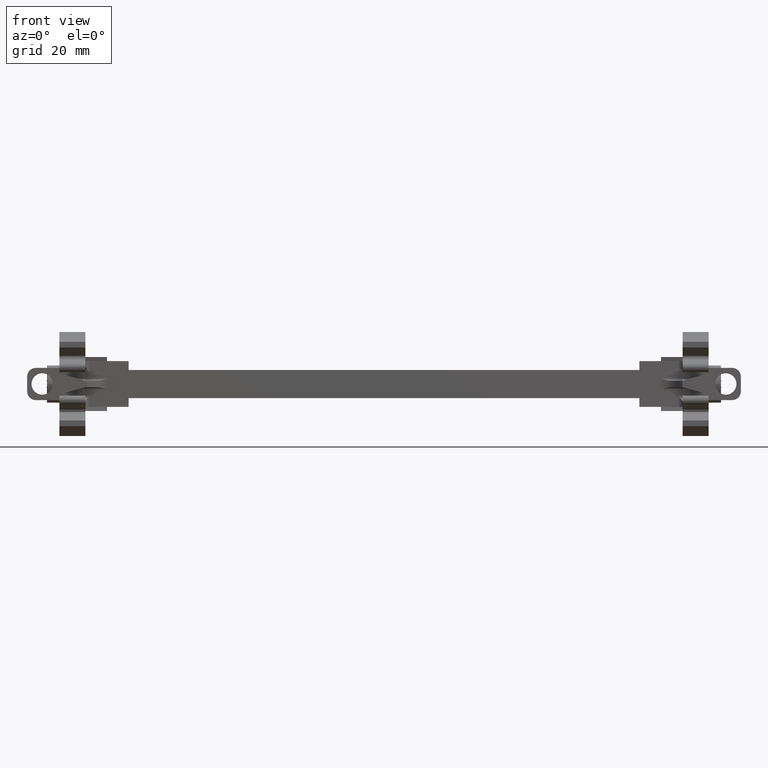
[diagram: clean part render]
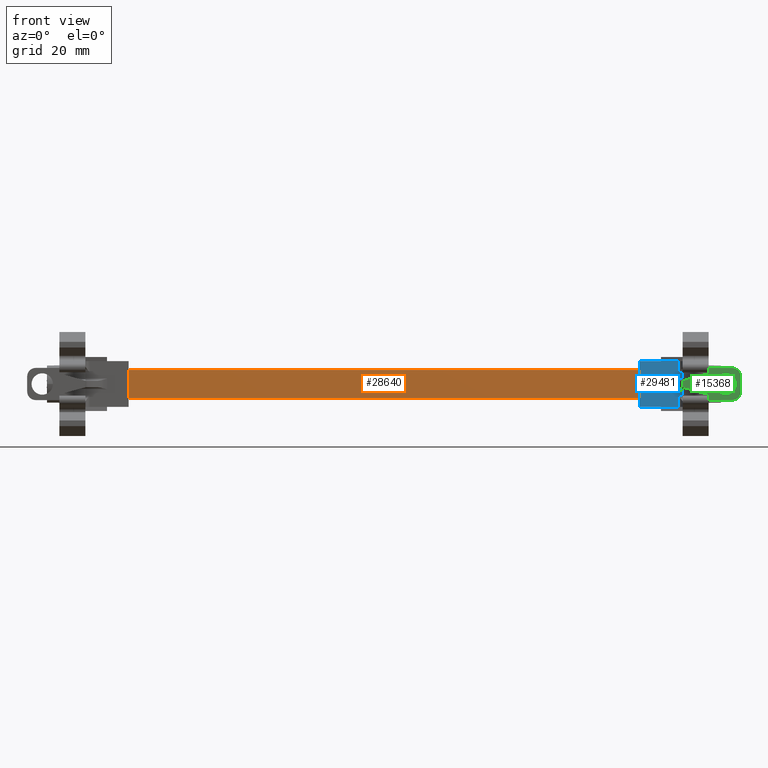
[diagram: same view with three faces highlighted in distinct colors, each labeled with its STEP entity id]
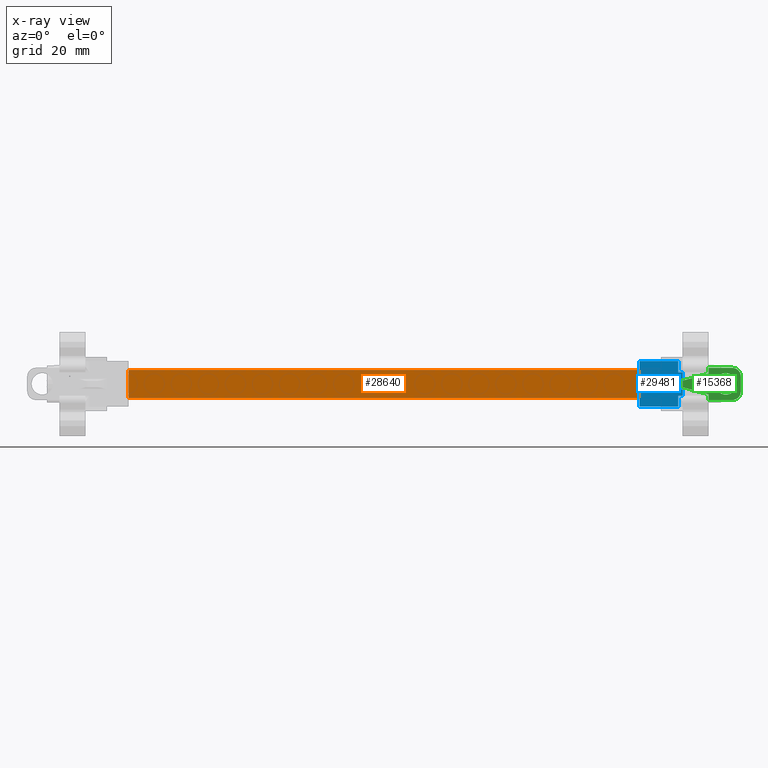
[diagram: x-ray of the same camera — body ghosted, the three highlighted faces saturated]
A machine part, front view with three faces highlighted in distinct colors.
The next image is the same camera in x-ray (body ghosted, the three faces saturated) — at least one of them is partly hidden behind the body in this view.
Their STEP definitions:

[orange] entity #28640 — the highlighted planar face has unit normal (-0, 1, 0).
#2460 = PLANE ( 'NONE',  #9435 ) ;
#2461 = CARTESIAN_POINT ( 'NONE',  ( -153.6716458143864100, -99.50918132484949300, 212.7213441700645000 ) ) ;
#2462 = DIRECTION ( 'NONE',  ( 0.0000000000000000000, -1.301736496372995800E-013, 1.000000000000000000 ) ) ;
#2463 = FACE_OUTER_BOUND ( 'NONE', #10185, .T. ) ;
#2490 = DIRECTION ( 'NONE',  ( -1.102107995711174800E-014, 1.000000000000000000, 1.301736496372995800E-013 ) ) ;
#5126 = VECTOR ( 'NONE', #19650, 1000.000000000000000 ) ;
#5166 = VECTOR ( 'NONE', #19595, 1000.000000000000000 ) ;
#5203 = VECTOR ( 'NONE', #21890, 1000.000000000000000 ) ;
#7173 = VERTEX_POINT ( 'NONE', #21377 ) ;
#7183 = VERTEX_POINT ( 'NONE', #21379 ) ;
#7185 = VERTEX_POINT ( 'NONE', #21391 ) ;
#7191 = VERTEX_POINT ( 'NONE', #21392 ) ;
#9435 = AXIS2_PLACEMENT_3D ( 'NONE', #2461, #2490, #2462 ) ;
#9698 = ORIENTED_EDGE ( 'NONE', *, *, #17160, .F. ) ;
#9703 = ORIENTED_EDGE ( 'NONE', *, *, #17189, .F. ) ;
#9717 = ORIENTED_EDGE ( 'NONE', *, *, #18164, .F. ) ;
#9736 = ORIENTED_EDGE ( 'NONE', *, *, #17188, .F. ) ;
#10185 = EDGE_LOOP ( 'NONE', ( #9698, #9703, #9717, #9736 ) ) ;
#17160 = EDGE_CURVE ( 'NONE', #7191, #7173, #21836, .T. ) ;
#17188 = EDGE_CURVE ( 'NONE', #7173, #7185, #19618, .T. ) ;
#17189 = EDGE_CURVE ( 'NONE', #7183, #7191, #19639, .T. ) ;
#18164 = EDGE_CURVE ( 'NONE', #7185, #7183, #20594, .T. ) ;
#19581 = CARTESIAN_POINT ( 'NONE',  ( -69.94164581438649000, -99.50918132484858300, 212.7213441700645000 ) ) ;
#19595 = DIRECTION ( 'NONE',  ( -0.0000000000000000000, 1.301736496372995800E-013, -1.000000000000000000 ) ) ;
#19618 = LINE ( 'NONE', #19638, #5126 ) ;
#19638 = CARTESIAN_POINT ( 'NONE',  ( -187.9416458143863100, -99.50918132484987700, 212.7213441700645000 ) ) ;
#19639 = LINE ( 'NONE', #19581, #5166 ) ;
#19650 = DIRECTION ( 'NONE',  ( 0.0000000000000000000, -1.301736496372995800E-013, 1.000000000000000000 ) ) ;
#20585 = CARTESIAN_POINT ( 'NONE',  ( -153.6716458143864900, -99.50918132485071500, 219.2213441700648400 ) ) ;
#20588 = DIRECTION ( 'NONE',  ( 1.000000000000000000, -3.068278559856131500E-028, 2.356061070560432900E-015 ) ) ;
#20594 = LINE ( 'NONE', #20585, #32402 ) ;
#21377 = CARTESIAN_POINT ( 'NONE',  ( -187.9416458143863100, -99.50918132484987700, 212.7213441700649000 ) ) ;
#21379 = CARTESIAN_POINT ( 'NONE',  ( -69.94164581438649000, -99.50918132485006100, 219.2213441700650400 ) ) ;
#21391 = CARTESIAN_POINT ( 'NONE',  ( -187.9416458143863300, -99.50918132485071500, 219.2213441700646700 ) ) ;
#21392 = CARTESIAN_POINT ( 'NONE',  ( -69.94164581438647600, -99.50918132484858300, 212.7213441700650400 ) ) ;
#21836 = LINE ( 'NONE', #21872, #5203 ) ;
#21872 = CARTESIAN_POINT ( 'NONE',  ( -153.6716458143864100, -99.50918132484949300, 212.7213441700650400 ) ) ;
#21890 = DIRECTION ( 'NONE',  ( -1.000000000000000000, -1.102107995711174800E-014, -1.434654200961729300E-027 ) ) ;
#28640 = ADVANCED_FACE ( 'NONE', ( #2463 ), #2460, .F. ) ;
#32402 = VECTOR ( 'NONE', #20588, 1000.000000000000000 ) ;

[blue] entity #29481 — the highlighted planar face has unit normal (0, -1, -0).
#54 = VECTOR ( 'NONE', #8525, 1000.000000000000000 ) ;
#62 = VECTOR ( 'NONE', #8547, 1000.000000000000000 ) ;
#67 = VECTOR ( 'NONE', #8491, 1000.000000000000000 ) ;
#171 = VECTOR ( 'NONE', #8583, 1000.000000000000000 ) ;
#2741 = DIRECTION ( 'NONE',  ( 1.000000000000000000, 1.100161628464522800E-014, 1.526780963412981600E-027 ) ) ;
#2756 = CARTESIAN_POINT ( 'NONE',  ( -52.88564581438650000, -100.8039706742538300, 210.6955482728040200 ) ) ;
#2775 = LINE ( 'NONE', #2756, #9597 ) ;
#3693 = CARTESIAN_POINT ( 'NONE',  ( -52.88564581438650000, -100.8039706742542000, 213.3105829736306000 ) ) ;
#3701 = DIRECTION ( 'NONE',  ( 1.000000000000000000, 1.100161628464522800E-014, 1.526780963412981600E-027 ) ) ;
#3725 = LINE ( 'NONE', #3693, #32859 ) ;
#3792 = LINE ( 'NONE', #3808, #32890 ) ;
#3808 = CARTESIAN_POINT ( 'NONE',  ( -52.88564581438650000, -100.8039706742549600, 218.6645135719746500 ) ) ;
#3820 = DIRECTION ( 'NONE',  ( -1.000000000000000000, -1.100161628464522800E-014, -1.526780963412981600E-027 ) ) ;
#5090 = VECTOR ( 'NONE', #21621, 1000.000000000000000 ) ;
#5125 = VECTOR ( 'NONE', #21669, 1000.000000000000000 ) ;
#7668 = VERTEX_POINT ( 'NONE', #28085 ) ;
#7691 = VERTEX_POINT ( 'NONE', #28107 ) ;
#7720 = VERTEX_POINT ( 'NONE', #28131 ) ;
#7726 = VERTEX_POINT ( 'NONE', #28115 ) ;
#7838 = VERTEX_POINT ( 'NONE', #11951 ) ;
#7842 = VERTEX_POINT ( 'NONE', #11965 ) ;
#7853 = VERTEX_POINT ( 'NONE', #12052 ) ;
#7899 = VERTEX_POINT ( 'NONE', #12107 ) ;
#7903 = VERTEX_POINT ( 'NONE', #12100 ) ;
#7911 = VERTEX_POINT ( 'NONE', #12123 ) ;
#7930 = VERTEX_POINT ( 'NONE', #12175 ) ;
#7949 = VERTEX_POINT ( 'NONE', #12139 ) ;
#8480 = CARTESIAN_POINT ( 'NONE',  ( -52.88564581438650000, -100.8039706742547400, 217.2475482728011100 ) ) ;
#8491 = DIRECTION ( 'NONE',  ( 1.000000000000000000, 1.100161628464522800E-014, 1.526780963412981600E-027 ) ) ;
#8502 = CARTESIAN_POINT ( 'NONE',  ( -52.88564581438650000, -100.8039706742544000, 214.7275482728040000 ) ) ;
#8504 = LINE ( 'NONE', #8480, #67 ) ;
#8509 = LINE ( 'NONE', #8502, #62 ) ;
#8525 = DIRECTION ( 'NONE',  ( -0.0000000000000000000, -1.387778780781406000E-013, 1.000000000000000000 ) ) ;
#8532 = LINE ( 'NONE', #8554, #54 ) ;
#8547 = DIRECTION ( 'NONE',  ( -1.000000000000000000, -1.100161628464522800E-014, -1.526780963412981600E-027 ) ) ;
#8554 = CARTESIAN_POINT ( 'NONE',  ( -64.98164581438649600, -100.8039706742539600, 210.6016037692869800 ) ) ;
#8578 = CARTESIAN_POINT ( 'NONE',  ( -59.94164581438649700, -100.8039706742544300, 227.9935498338489900 ) ) ;
#8583 = DIRECTION ( 'NONE',  ( 2.352285033423030300E-015, -0.0000000000000000000, -1.000000000000000000 ) ) ;
#8599 = LINE ( 'NONE', #8578, #171 ) ;
#8617 = CARTESIAN_POINT ( 'NONE',  ( -60.94964581438651400, -100.8039706742539000, 210.6016037692869800 ) ) ;
#8647 = LINE ( 'NONE', #8617, #23855 ) ;
#8652 = DIRECTION ( 'NONE',  ( -0.0000000000000000000, -1.387778780781406000E-013, 1.000000000000000000 ) ) ;
#8684 = DIRECTION ( 'NONE',  ( -0.0000000000000000000, -1.387778780781406000E-013, 1.000000000000000000 ) ) ;
#8689 = LINE ( 'NONE', #8691, #23860 ) ;
#8691 = CARTESIAN_POINT ( 'NONE',  ( -60.94964581438650700, -100.8039706742539000, 210.6016037692869800 ) ) ;
#8824 = LINE ( 'NONE', #8851, #23776 ) ;
#8851 = CARTESIAN_POINT ( 'NONE',  ( -59.94164581438639800, -100.8039706742539000, 210.6016037692869800 ) ) ;
#8852 = DIRECTION ( 'NONE',  ( -0.0000000000000000000, -1.387778780781406000E-013, 1.000000000000000000 ) ) ;
#8853 = PLANE ( 'NONE',  #23788 ) ;
#8865 = CARTESIAN_POINT ( 'NONE',  ( -52.88564581438650000, -100.8039706742538300, 210.6016037692869800 ) ) ;
#8882 = FACE_OUTER_BOUND ( 'NONE', #9982, .T. ) ;
#8892 = DIRECTION ( 'NONE',  ( 1.100161628464522800E-014, -1.000000000000000000, -1.387778780781406000E-013 ) ) ;
#8895 = DIRECTION ( 'NONE',  ( 0.0000000000000000000, 1.387778780781406000E-013, -1.000000000000000000 ) ) ;
#9597 = VECTOR ( 'NONE', #2741, 1000.000000000000000 ) ;
#9982 = EDGE_LOOP ( 'NONE', ( #13422, #13381, #13413, #13372, #13395, #13390, #13370, #13403, #13410, #13393, #13373, #13314 ) ) ;
#11951 = CARTESIAN_POINT ( 'NONE',  ( -64.98164581438648200, -100.8039706742548700, 217.2475482728011100 ) ) ;
#11965 = CARTESIAN_POINT ( 'NONE',  ( -60.94964581438651400, -100.8039706742539200, 210.6955482728037900 ) ) ;
#12052 = CARTESIAN_POINT ( 'NONE',  ( -59.94164581438639800, -100.8039706742548300, 217.2475482728011400 ) ) ;
#12100 = CARTESIAN_POINT ( 'NONE',  ( -69.94164581438646200, -100.8039706742540200, 210.6955482728040200 ) ) ;
#12107 = CARTESIAN_POINT ( 'NONE',  ( -60.94964581438650700, -100.8039706742547000, 221.2795482728014900 ) ) ;
#12123 = CARTESIAN_POINT ( 'NONE',  ( -64.98164581438648200, -100.8039706742545400, 214.7275482728040300 ) ) ;
#12139 = CARTESIAN_POINT ( 'NONE',  ( -59.94164581438643300, -100.8039706742544600, 214.7275482728040000 ) ) ;
#12175 = CARTESIAN_POINT ( 'NONE',  ( -69.94164581438649000, -100.8039706742540000, 221.2795482728012400 ) ) ;
#13314 = ORIENTED_EDGE ( 'NONE', *, *, #29391, .T. ) ;
#13370 = ORIENTED_EDGE ( 'NONE', *, *, #28713, .T. ) ;
#13372 = ORIENTED_EDGE ( 'NONE', *, *, #29421, .T. ) ;
#13373 = ORIENTED_EDGE ( 'NONE', *, *, #29390, .T. ) ;
#13381 = ORIENTED_EDGE ( 'NONE', *, *, #29468, .T. ) ;
#13390 = ORIENTED_EDGE ( 'NONE', *, *, #17094, .F. ) ;
#13393 = ORIENTED_EDGE ( 'NONE', *, *, #29403, .F. ) ;
#13395 = ORIENTED_EDGE ( 'NONE', *, *, #17089, .F. ) ;
#13403 = ORIENTED_EDGE ( 'NONE', *, *, #29428, .T. ) ;
#13410 = ORIENTED_EDGE ( 'NONE', *, *, #29009, .T. ) ;
#13413 = ORIENTED_EDGE ( 'NONE', *, *, #29041, .T. ) ;
#13422 = ORIENTED_EDGE ( 'NONE', *, *, #29381, .T. ) ;
#17089 = EDGE_CURVE ( 'NONE', #7930, #7899, #21614, .T. ) ;
#17094 = EDGE_CURVE ( 'NONE', #7903, #7930, #21641, .T. ) ;
#21614 = LINE ( 'NONE', #21618, #5090 ) ;
#21618 = CARTESIAN_POINT ( 'NONE',  ( -137.5677258143864200, -100.8039706742540000, 221.2795482728011500 ) ) ;
#21621 = DIRECTION ( 'NONE',  ( 1.000000000000000000, 3.254029360473868200E-028, 2.352285033426070200E-015 ) ) ;
#21641 = LINE ( 'NONE', #21647, #5125 ) ;
#21647 = CARTESIAN_POINT ( 'NONE',  ( -69.94164581438647600, -100.8039706742540000, 219.3152414071310000 ) ) ;
#21669 = DIRECTION ( 'NONE',  ( -2.352285033424550400E-015, -2.587893732985000900E-029, 1.000000000000000000 ) ) ;
#23776 = VECTOR ( 'NONE', #8852, 1000.000000000000000 ) ;
#23788 = AXIS2_PLACEMENT_3D ( 'NONE', #8865, #8892, #8895 ) ;
#23855 = VECTOR ( 'NONE', #8652, 1000.000000000000000 ) ;
#23860 = VECTOR ( 'NONE', #8684, 1000.000000000000000 ) ;
#28085 = CARTESIAN_POINT ( 'NONE',  ( -59.94164581438639100, -100.8039706742543700, 213.3105829736305500 ) ) ;
#28107 = CARTESIAN_POINT ( 'NONE',  ( -60.94964581438645700, -100.8039706742545900, 218.6645135719745400 ) ) ;
#28115 = CARTESIAN_POINT ( 'NONE',  ( -60.94964581438651400, -100.8039706742542900, 213.3105829736306300 ) ) ;
#28131 = CARTESIAN_POINT ( 'NONE',  ( -59.94164581438645500, -100.8039706742550300, 218.6645135719746800 ) ) ;
#28713 = EDGE_CURVE ( 'NONE', #7903, #7842, #2775, .T. ) ;
#29009 = EDGE_CURVE ( 'NONE', #7726, #7668, #3725, .T. ) ;
#29041 = EDGE_CURVE ( 'NONE', #7720, #7691, #3792, .T. ) ;
#29381 = EDGE_CURVE ( 'NONE', #7838, #7853, #8504, .T. ) ;
#29390 = EDGE_CURVE ( 'NONE', #7949, #7911, #8509, .T. ) ;
#29391 = EDGE_CURVE ( 'NONE', #7911, #7838, #8532, .T. ) ;
#29403 = EDGE_CURVE ( 'NONE', #7949, #7668, #8599, .T. ) ;
#29421 = EDGE_CURVE ( 'NONE', #7691, #7899, #8647, .T. ) ;
#29428 = EDGE_CURVE ( 'NONE', #7842, #7726, #8689, .T. ) ;
#29468 = EDGE_CURVE ( 'NONE', #7853, #7720, #8824, .T. ) ;
#29481 = ADVANCED_FACE ( 'NONE', ( #8882 ), #8853, .T. ) ;
#32859 = VECTOR ( 'NONE', #3701, 1000.000000000000000 ) ;
#32890 = VECTOR ( 'NONE', #3820, 1000.000000000000000 ) ;

[green] entity #15368 — the highlighted planar face has unit normal (0, -1, 0).
#562 = AXIS2_PLACEMENT_3D ( 'NONE', #18450, #18467, #18405 ) ;
#572 = CIRCLE ( 'NONE', #562, 2.474999999999997900 ) ;
#5214 = VECTOR ( 'NONE', #26626, 1000.000000000000000 ) ;
#5215 = CIRCLE ( 'NONE', #5223, 1.980000000000002600 ) ;
#5223 = AXIS2_PLACEMENT_3D ( 'NONE', #26619, #26629, #26610 ) ;
#5255 = VECTOR ( 'NONE', #26379, 1000.000000000000000 ) ;
#5264 = VECTOR ( 'NONE', #26562, 1000.000000000000000 ) ;
#5277 = VECTOR ( 'NONE', #26713, 1000.000000000000200 ) ;
#5466 = AXIS2_PLACEMENT_3D ( 'NONE', #26123, #26214, #26114 ) ;
#5722 = EDGE_CURVE ( 'NONE', #24703, #24650, #15219, .T. ) ;
#5723 = EDGE_CURVE ( 'NONE', #24676, #24665, #15213, .T. ) ;
#5727 = EDGE_CURVE ( 'NONE', #24684, #24698, #23016, .T. ) ;
#5729 = EDGE_CURVE ( 'NONE', #24701, #24684, #21602, .T. ) ;
#5737 = EDGE_CURVE ( 'NONE', #16546, #16492, #23032, .T. ) ;
#5739 = EDGE_CURVE ( 'NONE', #24674, #24682, #21337, .T. ) ;
#13686 = EDGE_CURVE ( 'NONE', #24682, #24698, #26373, .T. ) ;
#13707 = EDGE_CURVE ( 'NONE', #24672, #24701, #5215, .T. ) ;
#13710 = EDGE_CURVE ( 'NONE', #24672, #24676, #26587, .T. ) ;
#13716 = EDGE_CURVE ( 'NONE', #24650, #24674, #26551, .T. ) ;
#13723 = EDGE_CURVE ( 'NONE', #24665, #24703, #26606, .T. ) ;
#13811 = CARTESIAN_POINT ( 'NONE',  ( -47.50664581438638100, -112.7399380817969600, 215.9835481131995000 ) ) ;
#15179 = CARTESIAN_POINT ( 'NONE',  ( -48.48164581438638300, -112.7399380817970200, 214.2422331528850100 ) ) ;
#15188 = DIRECTION ( 'NONE',  ( -1.049160784736400100E-014, 1.000000000000000000, -9.044991914139729700E-037 ) ) ;
#15210 = CARTESIAN_POINT ( 'NONE',  ( -59.94164581438629100, -112.7399380817970600, 188.2738655272060600 ) ) ;
#15211 = DIRECTION ( 'NONE',  ( 0.0000000000000000000, -0.0000000000000000000, -1.000000000000000000 ) ) ;
#15213 = LINE ( 'NONE', #15218, #23014 ) ;
#15214 = DIRECTION ( 'NONE',  ( 0.0000000000000000000, -0.0000000000000000000, -1.000000000000000000 ) ) ;
#15218 = CARTESIAN_POINT ( 'NONE',  ( -53.94164581438641900, -112.7399380817969900, 188.2738655272060600 ) ) ;
#15219 = LINE ( 'NONE', #15210, #23745 ) ;
#15368 = ADVANCED_FACE ( 'NONE', ( #26134, #26223 ), #26112, .T. ) ;
#15585 = EDGE_LOOP ( 'NONE', ( #25494, #25517 ) ) ;
#16492 = VERTEX_POINT ( 'NONE', #13811 ) ;
#16546 = VERTEX_POINT ( 'NONE', #22018 ) ;
#16842 = EDGE_LOOP ( 'NONE', ( #25513, #25506, #25503, #25511, #25491, #25528, #25490, #25502, #25523, #25493 ) ) ;
#17250 = EDGE_CURVE ( 'NONE', #16492, #16546, #572, .T. ) ;
#18405 = DIRECTION ( 'NONE',  ( -1.000000000000000000, -1.121437398611270200E-014, 0.0000000000000000000 ) ) ;
#18450 = CARTESIAN_POINT ( 'NONE',  ( -49.98164581438637600, -112.7399380817969900, 215.9835481131995000 ) ) ;
#18467 = DIRECTION ( 'NONE',  ( -1.101172293446148100E-014, 1.000000000000000000, 0.0000000000000000000 ) ) ;
#21309 = CARTESIAN_POINT ( 'NONE',  ( -49.98164581438637600, -112.7399380817969900, 215.9835481131995000 ) ) ;
#21310 = CARTESIAN_POINT ( 'NONE',  ( -53.94164581438627000, -112.7399380817970900, 188.2738655272060600 ) ) ;
#21311 = DIRECTION ( 'NONE',  ( -1.101172293446148100E-014, 1.000000000000000000, 0.0000000000000000000 ) ) ;
#21322 = DIRECTION ( 'NONE',  ( -1.000000000000000000, -1.121437398611270200E-014, 0.0000000000000000000 ) ) ;
#21323 = DIRECTION ( 'NONE',  ( 2.470852055924995400E-015, 2.747299447020945000E-029, -1.000000000000000000 ) ) ;
#21337 = LINE ( 'NONE', #21310, #23036 ) ;
#21594 = CARTESIAN_POINT ( 'NONE',  ( -46.50164581438637900, -112.7399380817969800, 219.7048630735139900 ) ) ;
#21596 = DIRECTION ( 'NONE',  ( 1.759965832074445300E-015, 1.846487133488476300E-029, -1.000000000000000000 ) ) ;
#21600 = DIRECTION ( 'NONE',  ( 1.000000000000000000, 7.008983741320423700E-015, 0.0000000000000000000 ) ) ;
#21602 = LINE ( 'NONE', #21594, #23021 ) ;
#22018 = CARTESIAN_POINT ( 'NONE',  ( -52.45664581438637700, -112.7399380817970200, 215.9835481131995000 ) ) ;
#23014 = VECTOR ( 'NONE', #15214, 1000.000000000000000 ) ;
#23016 = CIRCLE ( 'NONE', #23020, 1.980000000000002600 ) ;
#23020 = AXIS2_PLACEMENT_3D ( 'NONE', #15179, #15188, #21600 ) ;
#23021 = VECTOR ( 'NONE', #21596, 1000.000000000000000 ) ;
#23032 = CIRCLE ( 'NONE', #23051, 2.474999999999997900 ) ;
#23036 = VECTOR ( 'NONE', #21323, 1000.000000000000000 ) ;
#23051 = AXIS2_PLACEMENT_3D ( 'NONE', #21309, #21311, #21322 ) ;
#23745 = VECTOR ( 'NONE', #15211, 1000.000000000000000 ) ;
#24650 = VERTEX_POINT ( 'NONE', #29790 ) ;
#24665 = VERTEX_POINT ( 'NONE', #29786 ) ;
#24672 = VERTEX_POINT ( 'NONE', #29781 ) ;
#24674 = VERTEX_POINT ( 'NONE', #29823 ) ;
#24676 = VERTEX_POINT ( 'NONE', #29784 ) ;
#24682 = VERTEX_POINT ( 'NONE', #29769 ) ;
#24684 = VERTEX_POINT ( 'NONE', #29859 ) ;
#24698 = VERTEX_POINT ( 'NONE', #29876 ) ;
#24701 = VERTEX_POINT ( 'NONE', #29826 ) ;
#24703 = VERTEX_POINT ( 'NONE', #29831 ) ;
#25490 = ORIENTED_EDGE ( 'NONE', *, *, #5727, .F. ) ;
#25491 = ORIENTED_EDGE ( 'NONE', *, *, #5739, .T. ) ;
#25493 = ORIENTED_EDGE ( 'NONE', *, *, #13710, .T. ) ;
#25494 = ORIENTED_EDGE ( 'NONE', *, *, #5737, .T. ) ;
#25502 = ORIENTED_EDGE ( 'NONE', *, *, #5729, .F. ) ;
#25503 = ORIENTED_EDGE ( 'NONE', *, *, #5722, .T. ) ;
#25506 = ORIENTED_EDGE ( 'NONE', *, *, #13723, .T. ) ;
#25511 = ORIENTED_EDGE ( 'NONE', *, *, #13716, .T. ) ;
#25513 = ORIENTED_EDGE ( 'NONE', *, *, #5723, .T. ) ;
#25517 = ORIENTED_EDGE ( 'NONE', *, *, #17250, .T. ) ;
#25523 = ORIENTED_EDGE ( 'NONE', *, *, #13707, .F. ) ;
#25528 = ORIENTED_EDGE ( 'NONE', *, *, #13686, .T. ) ;
#26112 = PLANE ( 'NONE',  #5466 ) ;
#26114 = DIRECTION ( 'NONE',  ( 1.000000000000000000, 1.101172293446148100E-014, 0.0000000000000000000 ) ) ;
#26123 = CARTESIAN_POINT ( 'NONE',  ( -53.94164581438629800, -112.7399380817969900, 188.2738655272060600 ) ) ;
#26134 = FACE_OUTER_BOUND ( 'NONE', #16842, .T. ) ;
#26214 = DIRECTION ( 'NONE',  ( 1.101172293446148100E-014, -1.000000000000000000, 0.0000000000000000000 ) ) ;
#26223 = FACE_BOUND ( 'NONE', #15585, .T. ) ;
#26373 = LINE ( 'NONE', #26378, #5255 ) ;
#26378 = CARTESIAN_POINT ( 'NONE',  ( -53.94164581438649700, -112.7399380817971200, 212.2622331528850700 ) ) ;
#26379 = DIRECTION ( 'NONE',  ( 1.000000000000000000, 0.0000000000000000000, 2.403906012228000300E-015 ) ) ;
#26551 = LINE ( 'NONE', #26554, #5214 ) ;
#26554 = CARTESIAN_POINT ( 'NONE',  ( -59.94164581438620600, -112.7399380817971600, 215.2215480981490400 ) ) ;
#26562 = DIRECTION ( 'NONE',  ( -1.000000000000000000, 0.0000000000000000000, -2.403906012228000300E-015 ) ) ;
#26572 = CARTESIAN_POINT ( 'NONE',  ( -53.94164581438649700, -112.7399380817969900, 219.7048630735139900 ) ) ;
#26587 = LINE ( 'NONE', #26572, #5264 ) ;
#26606 = LINE ( 'NONE', #26694, #5277 ) ;
#26610 = DIRECTION ( 'NONE',  ( -1.000000000000000000, -7.008983741320423700E-015, 0.0000000000000000000 ) ) ;
#26619 = CARTESIAN_POINT ( 'NONE',  ( -48.48164581438638300, -112.7399380817969900, 217.7248630735140600 ) ) ;
#26626 = DIRECTION ( 'NONE',  ( 0.9640415414303847900, 0.0000000000000000000, -0.2657515877591849500 ) ) ;
#26629 = DIRECTION ( 'NONE',  ( -1.049160784736400100E-014, 1.000000000000000000, 2.802596928649635400E-045 ) ) ;
#26694 = CARTESIAN_POINT ( 'NONE',  ( -53.94164581438640500, -112.7399380817969900, 218.3875323488580000 ) ) ;
#26713 = DIRECTION ( 'NONE',  ( -0.9640415414303831200, -1.114896995824123400E-014, -0.2657515877591907200 ) ) ;
#29769 = CARTESIAN_POINT ( 'NONE',  ( -53.94164581438637600, -112.7399380817971100, 212.2622331528850700 ) ) ;
#29781 = CARTESIAN_POINT ( 'NONE',  ( -48.48164581438638300, -112.7399380817969900, 219.7048630735140200 ) ) ;
#29784 = CARTESIAN_POINT ( 'NONE',  ( -53.94164581438641200, -112.7399380817969900, 219.7048630735139900 ) ) ;
#29786 = CARTESIAN_POINT ( 'NONE',  ( -53.94164581438639800, -112.7399380817969900, 218.3875323488580000 ) ) ;
#29790 = CARTESIAN_POINT ( 'NONE',  ( -59.94164581438629800, -112.7399380817971200, 215.2215480981490400 ) ) ;
#29823 = CARTESIAN_POINT ( 'NONE',  ( -53.94164581438629800, -112.7399380817971500, 213.5675638474400300 ) ) ;
#29826 = CARTESIAN_POINT ( 'NONE',  ( -46.50164581438637200, -112.7399380817969600, 217.7248630735140600 ) ) ;
#29831 = CARTESIAN_POINT ( 'NONE',  ( -59.94164581438629800, -112.7399380817970600, 216.7335480981489600 ) ) ;
#29859 = CARTESIAN_POINT ( 'NONE',  ( -46.50164581438637200, -112.7399380817969900, 214.2422331528850100 ) ) ;
#29876 = CARTESIAN_POINT ( 'NONE',  ( -48.48164581438635400, -112.7399380817970800, 212.2622331528850700 ) ) ;